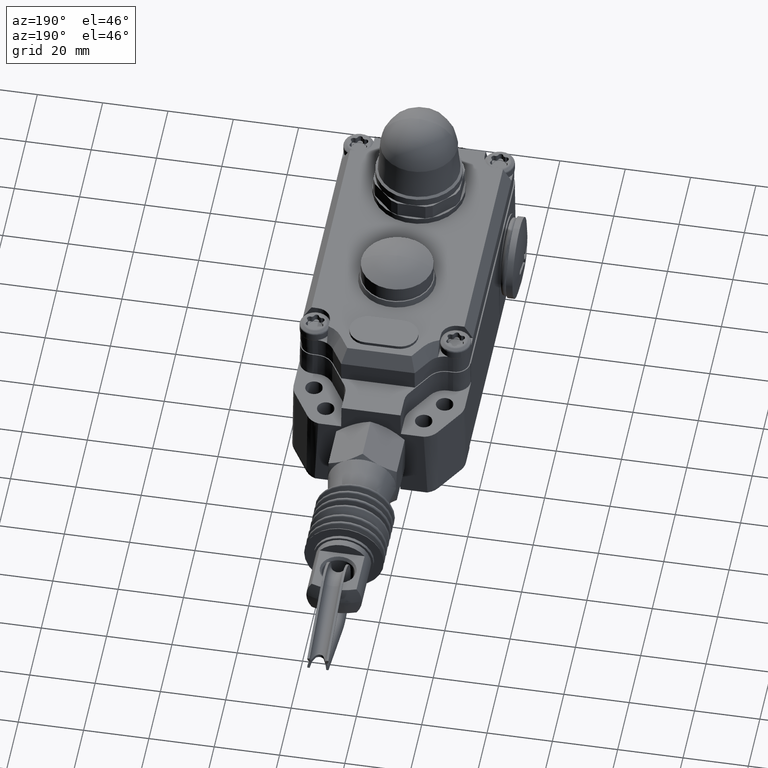
[diagram: clean part render]
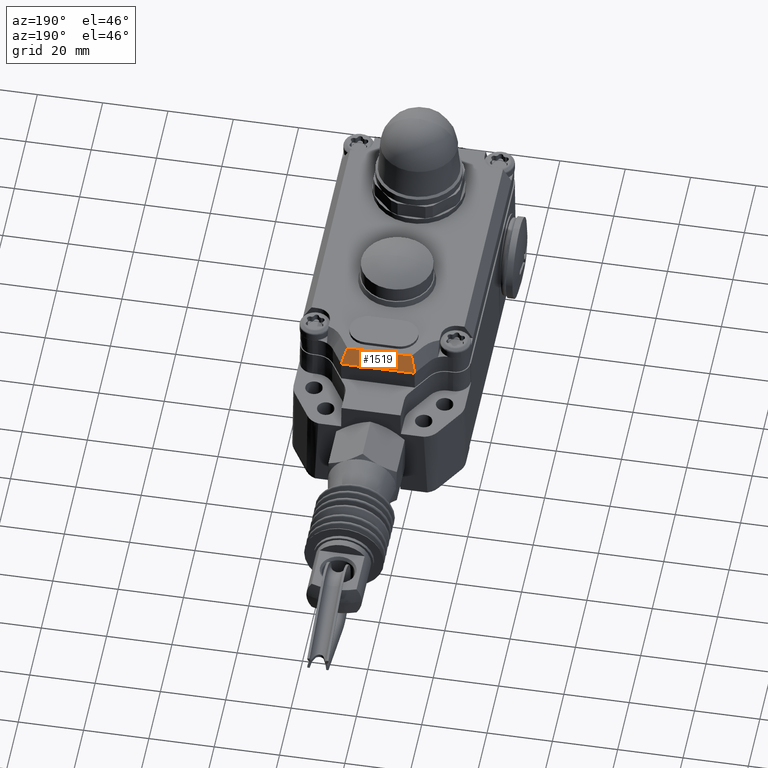
[diagram: same view with one face highlighted and labeled with its STEP entity id]
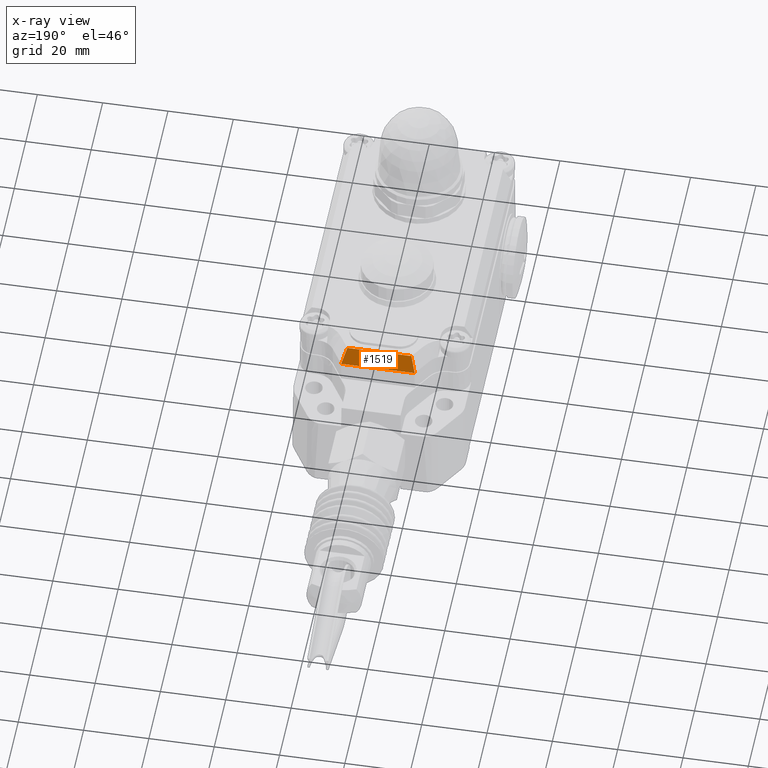
[diagram: x-ray of the same camera — body ghosted, the highlighted face saturated]
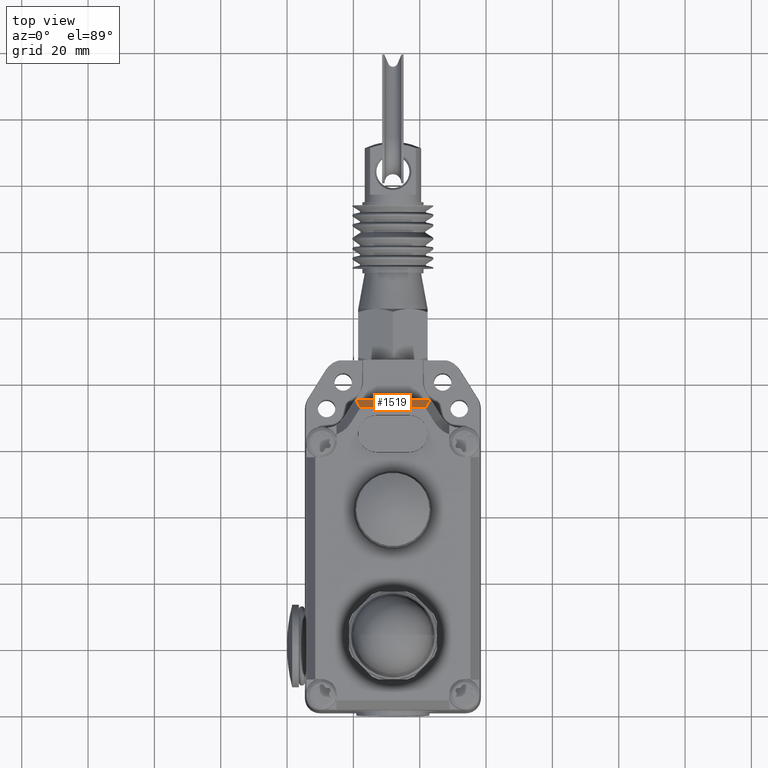
[diagram: same view with one face highlighted and labeled with its STEP entity id]
A machine part, auxiliary view. The second image highlights one B-rep face of the part: STEP entity #1519.
The next image is the same camera in x-ray: the body ghosted, the highlighted face saturated — about 0% of this face is hidden behind the body in this view.
A second angle (top view) of the same face is appended — the face is thin or edge-on in the first view.
In plain terms, the highlighted planar face has unit normal (0, 0.866, 0.5).
Its self-contained STEP definition (entity closure, byte-faithful):
#1519=ADVANCED_FACE('',(#3185),#3186,.T.);
#3185=FACE_OUTER_BOUND('',#4995,.T.);
#3186=PLANE('',#4996);
#4995=EDGE_LOOP('',(#9320,#9321,#9322,#9323));
#4996=AXIS2_PLACEMENT_3D('',#9324,#9325,#9326);
#9320=ORIENTED_EDGE('',*,*,#11994,.T.);
#9321=ORIENTED_EDGE('',*,*,#12232,.F.);
#9322=ORIENTED_EDGE('',*,*,#12239,.F.);
#9323=ORIENTED_EDGE('',*,*,#12236,.T.);
#9324=CARTESIAN_POINT('',(31.9104298117,95.04,38.5));
#9325=DIRECTION('',(0.0,0.866025403784438,0.500000000000001));
#9326=DIRECTION('',(-1.0,0.0,0.0));
#11994=EDGE_CURVE('',#14677,#14675,#14678,.T.);
#12232=EDGE_CURVE('',#14983,#14675,#14985,.T.);
#12236=EDGE_CURVE('',#14989,#14677,#14990,.T.);
#12239=EDGE_CURVE('',#14989,#14983,#14993,.T.);
#14675=VERTEX_POINT('',#18497);
#14677=VERTEX_POINT('',#18500);
#14678=LINE('',#18501,#18502);
#14983=VERTEX_POINT('',#19088);
#14985=LINE('',#19091,#19092);
#14989=VERTEX_POINT('',#19096);
#14990=LINE('',#19097,#19098);
#14993=LINE('',#19102,#19103);
#18497=CARTESIAN_POINT('',(41.720292651388,92.4419237886467,43.0));
#18500=CARTESIAN_POINT('',(22.1005669720501,92.4419237886467,43.0));
#18501=CARTESIAN_POINT('',(20.6604298117,92.4419237886467,43.0));
#18502=VECTOR('',#22000,1.0);
#19088=CARTESIAN_POINT('',(43.1604298117,95.04,38.5));
#19091=CARTESIAN_POINT('',(42.7591701263137,94.3161083652954,39.7538170904825));
#19092=VECTOR('',#22238,1.0);
#19096=CARTESIAN_POINT('',(20.6604298117,95.04,38.5));
#19097=CARTESIAN_POINT('',(20.9013521330874,94.6053646269735,39.2528105488486));
#19098=VECTOR('',#22242,1.0);
#19102=CARTESIAN_POINT('',(20.6604298117,95.04,38.5));
#19103=VECTOR('',#22244,1.0);
#22000=DIRECTION('',(1.0,0.0,0.0));
#22238=DIRECTION('',(-0.267086231730089,-0.481836316818332,0.834564981661204));
#22242=DIRECTION('',(0.267086231730089,-0.481836316818332,0.834564981661204));
#22244=DIRECTION('',(1.0,0.0,0.0));